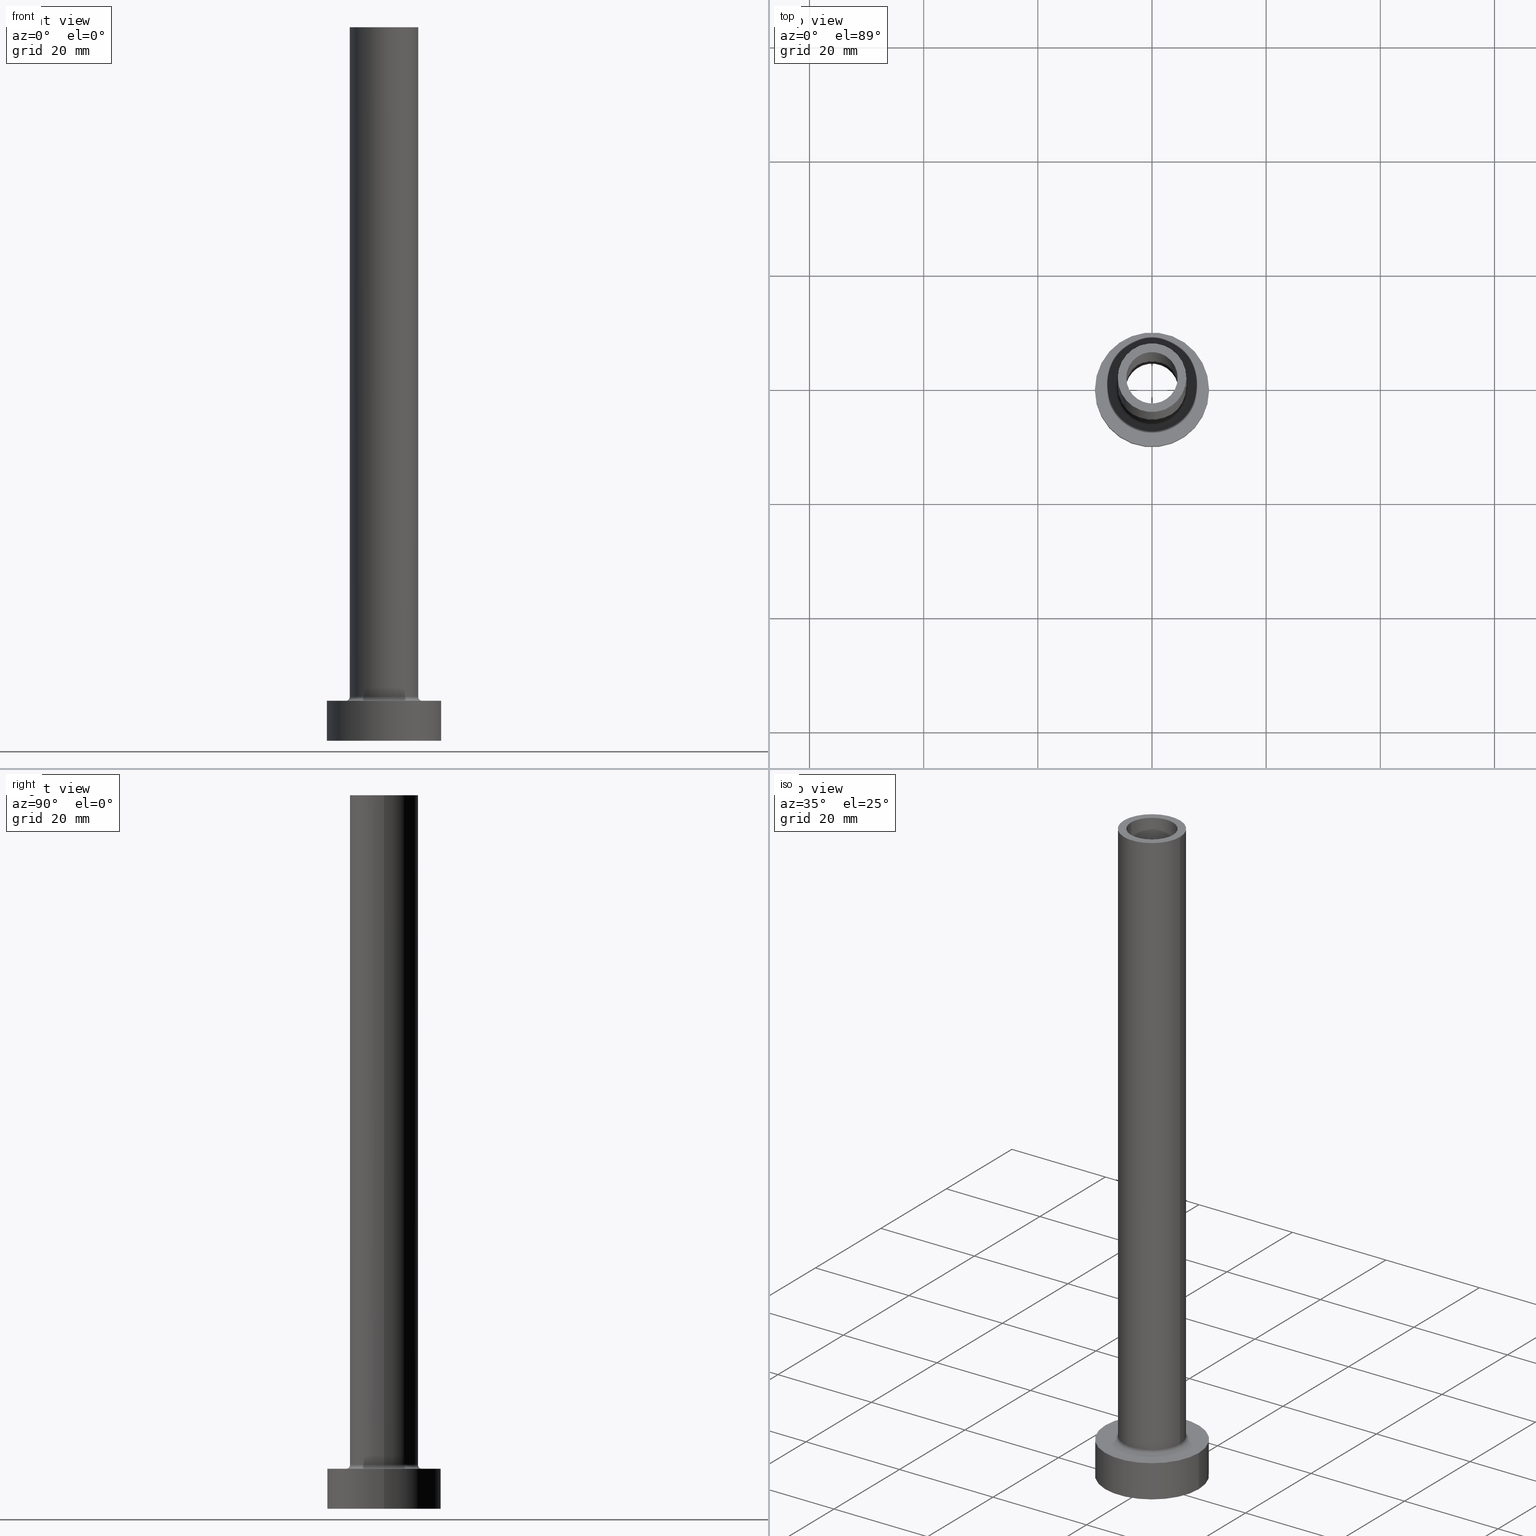
[diagram: canonical four-view strip — front | top / right | iso, engineering-drawing reading convention]
A machine part, canonical four-view strip (front | top / right | iso — engineering-drawing reading convention). The complete STEP part file that produces these views, byte-faithful:
ISO-10303-21;
HEADER;
FILE_DESCRIPTION (( 'STEP AP203' ),
    '1' );
FILE_NAME ('33ab.STEP',
    '2023-02-13T11:03:45',
    ( '' ),
    ( '' ),
    'SwSTEP 2.0',
    'SolidWorks 2019',
    '' );
FILE_SCHEMA (( 'CONFIG_CONTROL_DESIGN' ));
ENDSEC;

DATA;
#1 = CARTESIAN_POINT ( 'NONE',  ( 4.500000000000000000, 5.510910596163087583E-16, 125.0000000000000000 ) ) ;
#2 = PERSON_AND_ORGANIZATION_ROLE ( 'design_owner' ) ;
#3 = CARTESIAN_POINT ( 'NONE',  ( -6.700000000000001066, 8.205133554287267548E-16, 7.699999999999998401 ) ) ;
#4 = CIRCLE ( 'NONE', #98, 6.700000000000001066 ) ;
#5 =( GEOMETRIC_REPRESENTATION_CONTEXT ( 3 ) GLOBAL_UNCERTAINTY_ASSIGNED_CONTEXT ( ( #425 ) ) GLOBAL_UNIT_ASSIGNED_CONTEXT ( ( #255, #416, #392 ) ) REPRESENTATION_CONTEXT ( 'NONE', 'WORKASPACE' ) );
#6 = CARTESIAN_POINT ( 'NONE',  ( 0.000000000000000000, 0.000000000000000000, 125.0000000000000000 ) ) ;
#7 = ADVANCED_FACE ( 'NONE', ( #344 ), #171, .T. ) ;
#8 = DATE_AND_TIME ( #326, #81 ) ;
#9 = AXIS2_PLACEMENT_3D ( 'NONE', #311, #243, #339 ) ;
#10 = ORIENTED_EDGE ( 'NONE', *, *, #136, .T. ) ;
#11 = ORIENTED_EDGE ( 'NONE', *, *, #124, .T. ) ;
#12 = AXIS2_PLACEMENT_3D ( 'NONE', #412, #251, #384 ) ;
#13 = CC_DESIGN_PERSON_AND_ORGANIZATION_ASSIGNMENT ( #90, #56, ( #123 ) ) ;
#14 = APPROVAL_DATE_TIME ( #329, #270 ) ;
#15 = VERTEX_POINT ( 'NONE', #198 ) ;
#16 = ORIENTED_EDGE ( 'NONE', *, *, #349, .T. ) ;
#17 = AXIS2_PLACEMENT_3D ( 'NONE', #117, #153, #319 ) ;
#18 = ORIENTED_EDGE ( 'NONE', *, *, #204, .F. ) ;
#19 = LINE ( 'NONE', #161, #390 ) ;
#20 = CC_DESIGN_APPROVAL ( #22, ( #302 ) ) ;
#21 = VERTEX_POINT ( 'NONE', #378 ) ;
#22 = APPROVAL ( #223, 'NEUR�EN�' ) ;
#23 = CYLINDRICAL_SURFACE ( 'NONE', #64, 6.000000000000000888 ) ;
#24 = EDGE_LOOP ( 'NONE', ( #103, #408, #373, #87 ) ) ;
#25 = FACE_OUTER_BOUND ( 'NONE', #167, .T. ) ;
#26 = AXIS2_PLACEMENT_3D ( 'NONE', #43, #147, #73 ) ;
#27 = VERTEX_POINT ( 'NONE', #68 ) ;
#28 = FACE_OUTER_BOUND ( 'NONE', #122, .T. ) ;
#29 = EDGE_CURVE ( 'NONE', #268, #193, #342, .T. ) ;
#30 = VECTOR ( 'NONE', #108, 1000.000000000000000 ) ;
#31 = CIRCLE ( 'NONE', #457, 10.00000000000000000 ) ;
#32 = EDGE_LOOP ( 'NONE', ( #279, #126, #273, #369 ) ) ;
#33 = LINE ( 'NONE', #172, #211 ) ;
#34 = CARTESIAN_POINT ( 'NONE',  ( -6.700000000000001066, 8.205133554287267548E-16, 6.999999999999999112 ) ) ;
#35 = CARTESIAN_POINT ( 'NONE',  ( 0.000000000000000000, 0.000000000000000000, 7.699999999999998401 ) ) ;
#36 = DIRECTION ( 'NONE',  ( 0.000000000000000000, 0.000000000000000000, 1.000000000000000000 ) ) ;
#37 = CIRCLE ( 'NONE', #72, 4.650000000000000355 ) ;
#38 = DIRECTION ( 'NONE',  ( 1.000000000000000000, 0.000000000000000000, 0.000000000000000000 ) ) ;
#39 = CC_DESIGN_APPROVAL ( #270, ( #123 ) ) ;
#40 = DIRECTION ( 'NONE',  ( 0.000000000000000000, 0.000000000000000000, 1.000000000000000000 ) ) ;
#41 = LINE ( 'NONE', #1, #30 ) ;
#42 = DIRECTION ( 'NONE',  ( 1.000000000000000000, 0.000000000000000000, 0.000000000000000000 ) ) ;
#43 = CARTESIAN_POINT ( 'NONE',  ( 0.000000000000000000, 0.000000000000000000, 125.0000000000000000 ) ) ;
#44 = CALENDAR_DATE ( 2023, 13, 2 ) ;
#45 = ADVANCED_FACE ( 'NONE', ( #332 ), #139, .F. ) ;
#46 = DIRECTION ( 'NONE',  ( 0.000000000000000000, -1.000000000000000000, 0.000000000000000000 ) ) ;
#47 = ORIENTED_EDGE ( 'NONE', *, *, #434, .T. ) ;
#48 = AXIS2_PLACEMENT_3D ( 'NONE', #183, #391, #322 ) ;
#49 = AXIS2_PLACEMENT_3D ( 'NONE', #143, #348, #219 ) ;
#50 = APPLICATION_CONTEXT ( 'configuration controlled 3d designs of mechanical parts and assemblies' ) ;
#51 = CIRCLE ( 'NONE', #113, 0.7000000000000000666 ) ;
#52 = EDGE_CURVE ( 'NONE', #265, #400, #388, .T. ) ;
#53 = ORIENTED_EDGE ( 'NONE', *, *, #88, .F. ) ;
#54 = AXIS2_PLACEMENT_3D ( 'NONE', #241, #307, #449 ) ;
#55 = CIRCLE ( 'NONE', #446, 4.500000000000000000 ) ;
#56 = PERSON_AND_ORGANIZATION_ROLE ( 'creator' ) ;
#57 = EDGE_LOOP ( 'NONE', ( #297, #437, #134, #366 ) ) ;
#58 = ORIENTED_EDGE ( 'NONE', *, *, #173, .T. ) ;
#59 = DIRECTION ( 'NONE',  ( -0.000000000000000000, -0.000000000000000000, -1.000000000000000000 ) ) ;
#60 = VECTOR ( 'NONE', #258, 1000.000000000000000 ) ;
#61 = EDGE_CURVE ( 'NONE', #159, #186, #51, .T. ) ;
#62 = VERTEX_POINT ( 'NONE', #174 ) ;
#63 = CARTESIAN_POINT ( 'NONE',  ( -4.650000000000000355, 0.000000000000000000, 0.000000000000000000 ) ) ;
#64 = AXIS2_PLACEMENT_3D ( 'NONE', #102, #452, #202 ) ;
#65 = CIRCLE ( 'NONE', #163, 4.500000000000000000 ) ;
#66 = EDGE_LOOP ( 'NONE', ( #236, #330 ) ) ;
#67 = CARTESIAN_POINT ( 'NONE',  ( 0.000000000000000000, 0.000000000000000000, 7.000000000000000000 ) ) ;
#68 = CARTESIAN_POINT ( 'NONE',  ( 4.500000000000000000, 5.510910596163087583E-16, 125.0000000000000000 ) ) ;
#69 = CYLINDRICAL_SURFACE ( 'NONE', #116, 4.500000000000000000 ) ;
#70 = DIRECTION ( 'NONE',  ( -1.000000000000000000, 0.000000000000000000, 0.000000000000000000 ) ) ;
#71 = DIRECTION ( 'NONE',  ( 0.000000000000000000, 0.000000000000000000, 1.000000000000000000 ) ) ;
#72 = AXIS2_PLACEMENT_3D ( 'NONE', #456, #460, #426 ) ;
#73 = DIRECTION ( 'NONE',  ( 1.000000000000000000, 0.000000000000000000, 0.000000000000000000 ) ) ;
#74 = DIRECTION ( 'NONE',  ( 1.000000000000000000, 0.000000000000000000, 0.000000000000000000 ) ) ;
#75 = DIRECTION ( 'NONE',  ( 1.000000000000000000, 0.000000000000000000, 0.000000000000000000 ) ) ;
#76 = APPROVAL_DATE_TIME ( #385, #22 ) ;
#77 = EDGE_CURVE ( 'NONE', #15, #159, #111, .T. ) ;
#78 = DIRECTION ( 'NONE',  ( -1.000000000000000000, 1.224646799147353454E-16, 0.000000000000000000 ) ) ;
#79 = FACE_OUTER_BOUND ( 'NONE', #398, .T. ) ;
#80 = PLANE ( 'NONE',  #377 ) ;
#81 = LOCAL_TIME ( 12, 3, 44.00000000000000000, #226 ) ;
#82 = CYLINDRICAL_SURFACE ( 'NONE', #149, 4.650000000000000355 ) ;
#83 = CARTESIAN_POINT ( 'NONE',  ( 0.000000000000000000, 0.000000000000000000, 7.000000000000000000 ) ) ;
#84 = ADVANCED_FACE ( 'NONE', ( #145 ), #82, .F. ) ;
#85 = DIRECTION ( 'NONE',  ( 0.000000000000000000, 0.000000000000000000, -1.000000000000000000 ) ) ;
#86 = AXIS2_PLACEMENT_3D ( 'NONE', #207, #333, #406 ) ;
#87 = ORIENTED_EDGE ( 'NONE', *, *, #158, .F. ) ;
#88 = EDGE_CURVE ( 'NONE', #197, #96, #114, .T. ) ;
#89 = ORIENTED_EDGE ( 'NONE', *, *, #195, .F. ) ;
#90 = PERSON_AND_ORGANIZATION ( #424, #107 ) ;
#91 = VERTEX_POINT ( 'NONE', #254 ) ;
#92 = CYLINDRICAL_SURFACE ( 'NONE', #432, 10.00000000000000000 ) ;
#93 = EDGE_CURVE ( 'NONE', #268, #15, #313, .T. ) ;
#94 = ORIENTED_EDGE ( 'NONE', *, *, #173, .F. ) ;
#95 = CARTESIAN_POINT ( 'NONE',  ( 0.000000000000000000, 0.000000000000000000, 7.699999999999998401 ) ) ;
#96 = VERTEX_POINT ( 'NONE', #422 ) ;
#97 = CARTESIAN_POINT ( 'NONE',  ( 6.000000000000000888, 7.347880794884120722E-16, 125.0000000000000000 ) ) ;
#98 = AXIS2_PLACEMENT_3D ( 'NONE', #359, #260, #185 ) ;
#99 = CC_DESIGN_APPROVAL ( #397, ( #346 ) ) ;
#100 = CC_DESIGN_DATE_AND_TIME_ASSIGNMENT ( #249, #381, ( #302 ) ) ;
#101 = ORIENTED_EDGE ( 'NONE', *, *, #77, .T. ) ;
#102 = CARTESIAN_POINT ( 'NONE',  ( 0.000000000000000000, 0.000000000000000000, 125.0000000000000000 ) ) ;
#103 = ORIENTED_EDGE ( 'NONE', *, *, #129, .F. ) ;
#104 = DIRECTION ( 'NONE',  ( -0.000000000000000000, -0.000000000000000000, -1.000000000000000000 ) ) ;
#105 = CARTESIAN_POINT ( 'NONE',  ( 0.000000000000000000, 0.000000000000000000, 0.000000000000000000 ) ) ;
#106 = CALENDAR_DATE ( 2023, 13, 2 ) ;
#107 = ORGANIZATION ( 'NEUR�EN�', 'NEUR�EN�', '' ) ;
#108 = DIRECTION ( 'NONE',  ( 0.000000000000000000, 0.000000000000000000, -1.000000000000000000 ) ) ;
#109 = MECHANICAL_CONTEXT ( 'NONE', #429, 'mechanical' ) ;
#110 = ADVANCED_FACE ( 'NONE', ( #453, #150 ), #80, .F. ) ;
#111 = LINE ( 'NONE', #419, #299 ) ;
#112 = MANIFOLD_SOLID_BREP ( 'Odebrat vysunut�m4', #420 ) ;
#113 = AXIS2_PLACEMENT_3D ( 'NONE', #3, #180, #78 ) ;
#114 = LINE ( 'NONE', #357, #60 ) ;
#115 = DESIGN_CONTEXT ( 'detailed design', #50, 'design' ) ;
#116 = AXIS2_PLACEMENT_3D ( 'NONE', #205, #439, #309 ) ;
#117 = CARTESIAN_POINT ( 'NONE',  ( 0.000000000000000000, 0.000000000000000000, 7.699999999999998401 ) ) ;
#118 = ADVANCED_FACE ( 'NONE', ( #289 ), #182, .F. ) ;
#119 = CARTESIAN_POINT ( 'NONE',  ( -4.500000000000000000, 0.000000000000000000, 125.0000000000000000 ) ) ;
#120 = PERSON_AND_ORGANIZATION_ROLE ( 'classification_officer' ) ;
#121 = APPROVAL_STATUS ( 'not_yet_approved' ) ;
#122 = EDGE_LOOP ( 'NONE', ( #328, #169, #101, #365 ) ) ;
#123 = PRODUCT_DEFINITION_FORMATION_WITH_SPECIFIED_SOURCE ( 'LIBOVOLN�', '', #262, .NOT_KNOWN. ) ;
#124 = EDGE_CURVE ( 'NONE', #193, #159, #224, .T. ) ;
#125 = PERSON_AND_ORGANIZATION ( #424, #107 ) ;
#126 = ORIENTED_EDGE ( 'NONE', *, *, #356, .T. ) ;
#127 = ORIENTED_EDGE ( 'NONE', *, *, #52, .T. ) ;
#128 = ORIENTED_EDGE ( 'NONE', *, *, #247, .F. ) ;
#129 = EDGE_CURVE ( 'NONE', #27, #62, #41, .T. ) ;
#130 = LOCAL_TIME ( 12, 3, 44.00000000000000000, #394 ) ;
#131 = PERSON_AND_ORGANIZATION ( #424, #107 ) ;
#132 = ORIENTED_EDGE ( 'NONE', *, *, #93, .T. ) ;
#133 = FACE_OUTER_BOUND ( 'NONE', #435, .T. ) ;
#134 = ORIENTED_EDGE ( 'NONE', *, *, #253, .T. ) ;
#135 = CARTESIAN_POINT ( 'NONE',  ( -10.00000000000000000, 0.000000000000000000, 0.000000000000000000 ) ) ;
#136 = EDGE_CURVE ( 'NONE', #21, #265, #152, .T. ) ;
#137 = EDGE_LOOP ( 'NONE', ( #363, #235, #11, #336 ) ) ;
#138 = DIRECTION ( 'NONE',  ( 0.000000000000000000, 0.000000000000000000, 1.000000000000000000 ) ) ;
#139 = CYLINDRICAL_SURFACE ( 'NONE', #320, 4.650000000000000355 ) ;
#140 = DIRECTION ( 'NONE',  ( -1.000000000000000000, 0.000000000000000000, 0.000000000000000000 ) ) ;
#141 = DIRECTION ( 'NONE',  ( -0.000000000000000000, -0.000000000000000000, -1.000000000000000000 ) ) ;
#142 = PERSON_AND_ORGANIZATION ( #424, #107 ) ;
#143 = CARTESIAN_POINT ( 'NONE',  ( 0.000000000000000000, 0.000000000000000000, 125.0000000000000000 ) ) ;
#144 = EDGE_CURVE ( 'NONE', #233, #400, #264, .T. ) ;
#145 = FACE_OUTER_BOUND ( 'NONE', #300, .T. ) ;
#146 = DIRECTION ( 'NONE',  ( 0.000000000000000000, 0.000000000000000000, 1.000000000000000000 ) ) ;
#147 = DIRECTION ( 'NONE',  ( 0.000000000000000000, 0.000000000000000000, 1.000000000000000000 ) ) ;
#148 = CARTESIAN_POINT ( 'NONE',  ( -4.650000000000000355, 0.000000000000000000, 93.15218613006979353 ) ) ;
#149 = AXIS2_PLACEMENT_3D ( 'NONE', #222, #287, #312 ) ;
#150 = FACE_OUTER_BOUND ( 'NONE', #245, .T. ) ;
#151 = APPLICATION_PROTOCOL_DEFINITION ( 'international standard', 'config_control_design', 1994, #50 ) ;
#152 = CIRCLE ( 'NONE', #48, 4.650000000000000355 ) ;
#153 = DIRECTION ( 'NONE',  ( 0.000000000000000000, 0.000000000000000000, 1.000000000000000000 ) ) ;
#154 = PERSON_AND_ORGANIZATION_ROLE ( 'design_supplier' ) ;
#155 = ORIENTED_EDGE ( 'NONE', *, *, #418, .F. ) ;
#156 = EDGE_CURVE ( 'NONE', #191, #375, #455, .T. ) ;
#157 = ORIENTED_EDGE ( 'NONE', *, *, #195, .T. ) ;
#158 = EDGE_CURVE ( 'NONE', #62, #96, #414, .T. ) ;
#159 = VERTEX_POINT ( 'NONE', #213 ) ;
#160 = DIRECTION ( 'NONE',  ( 0.000000000000000000, 0.000000000000000000, -1.000000000000000000 ) ) ;
#161 = CARTESIAN_POINT ( 'NONE',  ( -10.00000000000000000, 0.000000000000000000, 7.000000000000000000 ) ) ;
#162 = CIRCLE ( 'NONE', #192, 6.000000000000000888 ) ;
#163 = AXIS2_PLACEMENT_3D ( 'NONE', #379, #71, #209 ) ;
#164 = ORIENTED_EDGE ( 'NONE', *, *, #136, .F. ) ;
#165 = CARTESIAN_POINT ( 'NONE',  ( 0.000000000000000000, 0.000000000000000000, 7.000000000000000000 ) ) ;
#166 = EDGE_CURVE ( 'NONE', #375, #191, #274, .T. ) ;
#167 = EDGE_LOOP ( 'NONE', ( #263, #405 ) ) ;
#168 = PLANE ( 'NONE',  #54 ) ;
#169 = ORIENTED_EDGE ( 'NONE', *, *, #434, .F. ) ;
#170 = DIRECTION ( 'NONE',  ( 1.000000000000000000, 0.000000000000000000, 0.000000000000000000 ) ) ;
#171 = CYLINDRICAL_SURFACE ( 'NONE', #9, 6.000000000000000888 ) ;
#172 = CARTESIAN_POINT ( 'NONE',  ( 10.00000000000000000, 1.224646799147353256E-15, 7.000000000000000000 ) ) ;
#173 = EDGE_CURVE ( 'NONE', #91, #186, #353, .T. ) ;
#174 = CARTESIAN_POINT ( 'NONE',  ( 4.500000000000000000, 5.510910596163087583E-16, 80.00000000000000000 ) ) ;
#175 = COORDINATED_UNIVERSAL_TIME_OFFSET ( 1, 0, .AHEAD. ) ;
#176 = VECTOR ( 'NONE', #141, 1000.000000000000000 ) ;
#177 = CARTESIAN_POINT ( 'NONE',  ( 10.00000000000000000, 1.224646799147353256E-15, 0.000000000000000000 ) ) ;
#178 = AXIS2_PLACEMENT_3D ( 'NONE', #165, #138, #411 ) ;
#179 = CARTESIAN_POINT ( 'NONE',  ( 0.000000000000000000, 0.000000000000000000, 7.000000000000000000 ) ) ;
#180 = DIRECTION ( 'NONE',  ( 1.224646799147353207E-16, 1.000000000000000000, -0.000000000000000000 ) ) ;
#181 = APPLICATION_PROTOCOL_DEFINITION ( 'international standard', 'config_control_design', 1994, #429 ) ;
#182 = TOROIDAL_SURFACE ( 'NONE', #436, 6.700000000000001066, 0.6999999999999999556 ) ;
#183 = CARTESIAN_POINT ( 'NONE',  ( 0.000000000000000000, 0.000000000000000000, 80.00000000000000000 ) ) ;
#184 = CARTESIAN_POINT ( 'NONE',  ( 0.000000000000000000, 0.000000000000000000, 125.0000000000000000 ) ) ;
#185 = DIRECTION ( 'NONE',  ( 1.000000000000000000, 0.000000000000000000, 0.000000000000000000 ) ) ;
#186 = VERTEX_POINT ( 'NONE', #34 ) ;
#187 = CC_DESIGN_DATE_AND_TIME_ASSIGNMENT ( #8, #188, ( #346 ) ) ;
#188 = DATE_TIME_ROLE ( 'classification_date' ) ;
#189 = ORIENTED_EDGE ( 'NONE', *, *, #321, .F. ) ;
#190 = VECTOR ( 'NONE', #283, 1000.000000000000000 ) ;
#191 = VERTEX_POINT ( 'NONE', #177 ) ;
#192 = AXIS2_PLACEMENT_3D ( 'NONE', #95, #337, #170 ) ;
#193 = VERTEX_POINT ( 'NONE', #315 ) ;
#194 = PRODUCT_DEFINITION_SHAPE ( 'NONE', 'NONE',  #302 ) ;
#195 = EDGE_CURVE ( 'NONE', #265, #21, #37, .T. ) ;
#196 = PERSON_AND_ORGANIZATION ( #424, #107 ) ;
#197 = VERTEX_POINT ( 'NONE', #119 ) ;
#198 = CARTESIAN_POINT ( 'NONE',  ( -6.000000000000000888, 0.000000000000000000, 125.0000000000000000 ) ) ;
#199 = FACE_OUTER_BOUND ( 'NONE', #304, .T. ) ;
#200 = DATE_AND_TIME ( #267, #296 ) ;
#201 = ORIENTED_EDGE ( 'NONE', *, *, #247, .T. ) ;
#202 = DIRECTION ( 'NONE',  ( -1.000000000000000000, 0.000000000000000000, 0.000000000000000000 ) ) ;
#203 = ORIENTED_EDGE ( 'NONE', *, *, #144, .F. ) ;
#204 = EDGE_CURVE ( 'NONE', #186, #91, #4, .T. ) ;
#205 = CARTESIAN_POINT ( 'NONE',  ( 0.000000000000000000, 0.000000000000000000, 125.0000000000000000 ) ) ;
#206 = EDGE_LOOP ( 'NONE', ( #438, #189 ) ) ;
#207 = CARTESIAN_POINT ( 'NONE',  ( 0.000000000000000000, 0.000000000000000000, 7.699999999999998401 ) ) ;
#208 = VERTEX_POINT ( 'NONE', #291 ) ;
#209 = DIRECTION ( 'NONE',  ( 1.000000000000000000, 0.000000000000000000, 0.000000000000000000 ) ) ;
#210 = AXIS2_PLACEMENT_3D ( 'NONE', #179, #347, #350 ) ;
#211 = VECTOR ( 'NONE', #59, 1000.000000000000000 ) ;
#212 = EDGE_CURVE ( 'NONE', #193, #91, #323, .T. ) ;
#213 = CARTESIAN_POINT ( 'NONE',  ( -6.000000000000000888, 0.000000000000000000, 7.699999999999998401 ) ) ;
#214 = PERSON_AND_ORGANIZATION_ROLE ( 'creator' ) ;
#215 = CARTESIAN_POINT ( 'NONE',  ( 0.000000000000000000, 0.000000000000000000, 0.000000000000000000 ) ) ;
#216 = LINE ( 'NONE', #148, #242 ) ;
#217 = CARTESIAN_POINT ( 'NONE',  ( 4.650000000000000355, 5.694607616035192869E-16, 93.15218613006979353 ) ) ;
#218 = ADVANCED_FACE ( 'NONE', ( #225 ), #325, .F. ) ;
#219 = DIRECTION ( 'NONE',  ( 1.000000000000000000, 0.000000000000000000, -0.000000000000000000 ) ) ;
#220 = AXIS2_PLACEMENT_3D ( 'NONE', #374, #343, #404 ) ;
#221 = DIRECTION ( 'NONE',  ( -0.000000000000000000, -0.000000000000000000, -1.000000000000000000 ) ) ;
#222 = CARTESIAN_POINT ( 'NONE',  ( 0.000000000000000000, 0.000000000000000000, 93.15218613006979353 ) ) ;
#223 = APPROVAL_STATUS ( 'not_yet_approved' ) ;
#224 = CIRCLE ( 'NONE', #17, 6.000000000000000888 ) ;
#225 = FACE_OUTER_BOUND ( 'NONE', #24, .T. ) ;
#226 = COORDINATED_UNIVERSAL_TIME_OFFSET ( 1, 0, .AHEAD. ) ;
#227 = AXIS2_PLACEMENT_3D ( 'NONE', #393, #46, #85 ) ;
#228 = EDGE_CURVE ( 'NONE', #159, #193, #162, .T. ) ;
#229 = CIRCLE ( 'NONE', #324, 6.000000000000000888 ) ;
#230 = CC_DESIGN_SECURITY_CLASSIFICATION ( #346, ( #123 ) ) ;
#231 = ORIENTED_EDGE ( 'NONE', *, *, #61, .F. ) ;
#232 = ORIENTED_EDGE ( 'NONE', *, *, #144, .T. ) ;
#233 = VERTEX_POINT ( 'NONE', #63 ) ;
#234 = CIRCLE ( 'NONE', #396, 4.500000000000000000 ) ;
#235 = ORIENTED_EDGE ( 'NONE', *, *, #29, .T. ) ;
#236 = ORIENTED_EDGE ( 'NONE', *, *, #413, .T. ) ;
#237 = FACE_BOUND ( 'NONE', #298, .T. ) ;
#238 = ADVANCED_FACE ( 'NONE', ( #199 ), #407, .F. ) ;
#239 = EDGE_LOOP ( 'NONE', ( #16, #395, #306, #53 ) ) ;
#240 = AXIS2_PLACEMENT_3D ( 'NONE', #105, #248, #417 ) ;
#241 = CARTESIAN_POINT ( 'NONE',  ( 0.000000000000000000, 0.000000000000000000, 0.000000000000000000 ) ) ;
#242 = VECTOR ( 'NONE', #288, 1000.000000000000000 ) ;
#243 = DIRECTION ( 'NONE',  ( -0.000000000000000000, -0.000000000000000000, -1.000000000000000000 ) ) ;
#244 = CARTESIAN_POINT ( 'NONE',  ( 0.000000000000000000, 0.000000000000000000, 7.000000000000000000 ) ) ;
#245 = EDGE_LOOP ( 'NONE', ( #164, #89 ) ) ;
#246 = DIRECTION ( 'NONE',  ( -1.000000000000000000, 0.000000000000000000, 0.000000000000000000 ) ) ;
#247 = EDGE_CURVE ( 'NONE', #400, #233, #334, .T. ) ;
#248 = DIRECTION ( 'NONE',  ( 0.000000000000000000, 0.000000000000000000, 1.000000000000000000 ) ) ;
#249 = DATE_AND_TIME ( #106, #310 ) ;
#250 = AXIS2_PLACEMENT_3D ( 'NONE', #67, #376, #140 ) ;
#251 = DIRECTION ( 'NONE',  ( -0.000000000000000000, -0.000000000000000000, -1.000000000000000000 ) ) ;
#252 = CARTESIAN_POINT ( 'NONE',  ( 0.000000000000000000, 0.000000000000000000, 0.000000000000000000 ) ) ;
#253 = EDGE_CURVE ( 'NONE', #327, #375, #19, .T. ) ;
#254 = CARTESIAN_POINT ( 'NONE',  ( 6.700000000000001066, 0.000000000000000000, 6.999999999999999112 ) ) ;
#255 =( LENGTH_UNIT ( ) NAMED_UNIT ( * ) SI_UNIT ( .MILLI., .METRE. ) );
#256 = DIRECTION ( 'NONE',  ( 1.000000000000000000, 0.000000000000000000, -0.000000000000000000 ) ) ;
#257 = CIRCLE ( 'NONE', #284, 10.00000000000000000 ) ;
#258 = DIRECTION ( 'NONE',  ( 0.000000000000000000, 0.000000000000000000, -1.000000000000000000 ) ) ;
#259 = PERSON_AND_ORGANIZATION ( #424, #107 ) ;
#260 = DIRECTION ( 'NONE',  ( -0.000000000000000000, -0.000000000000000000, -1.000000000000000000 ) ) ;
#261 = ADVANCED_FACE ( 'NONE', ( #28 ), #23, .T. ) ;
#262 = PRODUCT ( '33ab', '33ab', '', ( #109 ) ) ;
#263 = ORIENTED_EDGE ( 'NONE', *, *, #459, .T. ) ;
#264 = CIRCLE ( 'NONE', #12, 4.650000000000000355 ) ;
#265 = VERTEX_POINT ( 'NONE', #345 ) ;
#266 = FACE_OUTER_BOUND ( 'NONE', #32, .T. ) ;
#267 = CALENDAR_DATE ( 2023, 13, 2 ) ;
#268 = VERTEX_POINT ( 'NONE', #97 ) ;
#269 = CYLINDRICAL_SURFACE ( 'NONE', #250, 10.00000000000000000 ) ;
#270 = APPROVAL ( #121, 'NEUR�EN�' ) ;
#271 = ORIENTED_EDGE ( 'NONE', *, *, #212, .T. ) ;
#272 = DIRECTION ( 'NONE',  ( 0.000000000000000000, 0.000000000000000000, -1.000000000000000000 ) ) ;
#273 = ORIENTED_EDGE ( 'NONE', *, *, #156, .T. ) ;
#274 = CIRCLE ( 'NONE', #401, 10.00000000000000000 ) ;
#275 = DIRECTION ( 'NONE',  ( -0.000000000000000000, -0.000000000000000000, -1.000000000000000000 ) ) ;
#276 = LOCAL_TIME ( 12, 3, 44.00000000000000000, #175 ) ;
#277 = ADVANCED_FACE ( 'NONE', ( #303 ), #69, .F. ) ;
#278 = APPROVAL_DATE_TIME ( #200, #397 ) ;
#279 = ORIENTED_EDGE ( 'NONE', *, *, #442, .F. ) ;
#280 = FACE_OUTER_BOUND ( 'NONE', #57, .T. ) ;
#281 = ORIENTED_EDGE ( 'NONE', *, *, #52, .F. ) ;
#282 = COORDINATED_UNIVERSAL_TIME_OFFSET ( 1, 0, .AHEAD. ) ;
#283 = DIRECTION ( 'NONE',  ( 0.000000000000000000, 0.000000000000000000, -1.000000000000000000 ) ) ;
#284 = AXIS2_PLACEMENT_3D ( 'NONE', #421, #387, #290 ) ;
#285 = DIRECTION ( 'NONE',  ( 1.000000000000000000, 0.000000000000000000, 0.000000000000000000 ) ) ;
#286 = ADVANCED_FACE ( 'NONE', ( #402, #133 ), #168, .F. ) ;
#287 = DIRECTION ( 'NONE',  ( 0.000000000000000000, 0.000000000000000000, -1.000000000000000000 ) ) ;
#288 = DIRECTION ( 'NONE',  ( 0.000000000000000000, 0.000000000000000000, -1.000000000000000000 ) ) ;
#289 = FACE_OUTER_BOUND ( 'NONE', #433, .T. ) ;
#290 = DIRECTION ( 'NONE',  ( 1.000000000000000000, 0.000000000000000000, 0.000000000000000000 ) ) ;
#291 = CARTESIAN_POINT ( 'NONE',  ( 10.00000000000000000, 1.224646799147353256E-15, 7.000000000000000000 ) ) ;
#292 = ADVANCED_FACE ( 'NONE', ( #237, #25 ), #444, .T. ) ;
#293 = SECURITY_CLASSIFICATION_LEVEL ( 'unclassified' ) ;
#294 = ORIENTED_EDGE ( 'NONE', *, *, #156, .F. ) ;
#295 = ADVANCED_FACE ( 'NONE', ( #266 ), #269, .T. ) ;
#296 = LOCAL_TIME ( 12, 3, 44.00000000000000000, #447 ) ;
#297 = ORIENTED_EDGE ( 'NONE', *, *, #356, .F. ) ;
#298 = EDGE_LOOP ( 'NONE', ( #58, #403 ) ) ;
#299 = VECTOR ( 'NONE', #221, 1000.000000000000000 ) ;
#300 = EDGE_LOOP ( 'NONE', ( #281, #157, #308, #232 ) ) ;
#301 = ORIENTED_EDGE ( 'NONE', *, *, #61, .T. ) ;
#302 = PRODUCT_DEFINITION ( 'NEZN�M�', '', #123, #115 ) ;
#303 = FACE_OUTER_BOUND ( 'NONE', #239, .T. ) ;
#304 = EDGE_LOOP ( 'NONE', ( #231, #440, #271, #18 ) ) ;
#305 = CARTESIAN_POINT ( 'NONE',  ( 0.000000000000000000, 0.000000000000000000, 125.0000000000000000 ) ) ;
#306 = ORIENTED_EDGE ( 'NONE', *, *, #413, .F. ) ;
#307 = DIRECTION ( 'NONE',  ( 0.000000000000000000, 0.000000000000000000, 1.000000000000000000 ) ) ;
#308 = ORIENTED_EDGE ( 'NONE', *, *, #418, .T. ) ;
#309 = DIRECTION ( 'NONE',  ( -1.000000000000000000, 0.000000000000000000, 0.000000000000000000 ) ) ;
#310 = LOCAL_TIME ( 12, 3, 44.00000000000000000, #282 ) ;
#311 = CARTESIAN_POINT ( 'NONE',  ( 0.000000000000000000, 0.000000000000000000, 125.0000000000000000 ) ) ;
#312 = DIRECTION ( 'NONE',  ( -1.000000000000000000, 0.000000000000000000, 0.000000000000000000 ) ) ;
#313 = CIRCLE ( 'NONE', #26, 6.000000000000000888 ) ;
#314 = FACE_BOUND ( 'NONE', #206, .T. ) ;
#315 = CARTESIAN_POINT ( 'NONE',  ( 6.000000000000000888, 7.347880794884120722E-16, 7.699999999999998401 ) ) ;
#316 = DIRECTION ( 'NONE',  ( 1.000000000000000000, 0.000000000000000000, 0.000000000000000000 ) ) ;
#317 = APPROVAL_PERSON_ORGANIZATION ( #259, #22, #358 ) ;
#318 = DIRECTION ( 'NONE',  ( 0.000000000000000000, 0.000000000000000000, 1.000000000000000000 ) ) ;
#319 = DIRECTION ( 'NONE',  ( 1.000000000000000000, 0.000000000000000000, 0.000000000000000000 ) ) ;
#320 = AXIS2_PLACEMENT_3D ( 'NONE', #410, #160, #70 ) ;
#321 = EDGE_CURVE ( 'NONE', #27, #197, #55, .T. ) ;
#322 = DIRECTION ( 'NONE',  ( 1.000000000000000000, 0.000000000000000000, 0.000000000000000000 ) ) ;
#323 = CIRCLE ( 'NONE', #227, 0.7000000000000000666 ) ;
#324 = AXIS2_PLACEMENT_3D ( 'NONE', #184, #146, #316 ) ;
#325 = CYLINDRICAL_SURFACE ( 'NONE', #361, 4.500000000000000000 ) ;
#326 = CALENDAR_DATE ( 2023, 13, 2 ) ;
#327 = VERTEX_POINT ( 'NONE', #409 ) ;
#328 = ORIENTED_EDGE ( 'NONE', *, *, #29, .F. ) ;
#329 = DATE_AND_TIME ( #431, #130 ) ;
#330 = ORIENTED_EDGE ( 'NONE', *, *, #158, .T. ) ;
#331 = ADVANCED_FACE ( 'NONE', ( #280 ), #92, .T. ) ;
#332 = FACE_OUTER_BOUND ( 'NONE', #428, .T. ) ;
#333 = DIRECTION ( 'NONE',  ( 0.000000000000000000, 0.000000000000000000, 1.000000000000000000 ) ) ;
#334 = CIRCLE ( 'NONE', #220, 4.650000000000000355 ) ;
#335 = ADVANCED_BREP_SHAPE_REPRESENTATION ( '33ab', ( #112, #371 ), #5 ) ;
#336 = ORIENTED_EDGE ( 'NONE', *, *, #77, .F. ) ;
#337 = DIRECTION ( 'NONE',  ( 0.000000000000000000, 0.000000000000000000, 1.000000000000000000 ) ) ;
#338 = APPROVAL_ROLE ( '' ) ;
#339 = DIRECTION ( 'NONE',  ( -1.000000000000000000, 0.000000000000000000, 0.000000000000000000 ) ) ;
#340 = PRODUCT_RELATED_PRODUCT_CATEGORY ( 'detail', '', ( #262 ) ) ;
#341 = SHAPE_DEFINITION_REPRESENTATION ( #194, #335 ) ;
#342 = LINE ( 'NONE', #451, #176 ) ;
#343 = DIRECTION ( 'NONE',  ( -0.000000000000000000, -0.000000000000000000, -1.000000000000000000 ) ) ;
#344 = FACE_OUTER_BOUND ( 'NONE', #137, .T. ) ;
#345 = CARTESIAN_POINT ( 'NONE',  ( 4.650000000000000355, 5.694607616035192869E-16, 80.00000000000000000 ) ) ;
#346 = SECURITY_CLASSIFICATION ( '', '', #293 ) ;
#347 = DIRECTION ( 'NONE',  ( -0.000000000000000000, -0.000000000000000000, -1.000000000000000000 ) ) ;
#348 = DIRECTION ( 'NONE',  ( 0.000000000000000000, 0.000000000000000000, 1.000000000000000000 ) ) ;
#349 = EDGE_CURVE ( 'NONE', #197, #27, #65, .T. ) ;
#350 = DIRECTION ( 'NONE',  ( 1.000000000000000000, 0.000000000000000000, 0.000000000000000000 ) ) ;
#351 = PERSON_AND_ORGANIZATION ( #424, #107 ) ;
#352 = CARTESIAN_POINT ( 'NONE',  ( 0.000000000000000000, 0.000000000000000000, 80.00000000000000000 ) ) ;
#353 = CIRCLE ( 'NONE', #210, 6.700000000000001066 ) ;
#354 = CARTESIAN_POINT ( 'NONE',  ( 0.000000000000000000, 0.000000000000000000, 80.00000000000000000 ) ) ;
#355 = DIRECTION ( 'NONE',  ( 0.000000000000000000, 0.000000000000000000, 1.000000000000000000 ) ) ;
#356 = EDGE_CURVE ( 'NONE', #208, #191, #33, .T. ) ;
#357 = CARTESIAN_POINT ( 'NONE',  ( -4.500000000000000000, 0.000000000000000000, 125.0000000000000000 ) ) ;
#358 = APPROVAL_ROLE ( '' ) ;
#359 = CARTESIAN_POINT ( 'NONE',  ( 0.000000000000000000, 0.000000000000000000, 7.000000000000000000 ) ) ;
#360 = ORIENTED_EDGE ( 'NONE', *, *, #228, .F. ) ;
#361 = AXIS2_PLACEMENT_3D ( 'NONE', #6, #272, #367 ) ;
#362 = APPROVAL_ROLE ( '' ) ;
#363 = ORIENTED_EDGE ( 'NONE', *, *, #93, .F. ) ;
#364 = APPROVAL_PERSON_ORGANIZATION ( #125, #270, #362 ) ;
#365 = ORIENTED_EDGE ( 'NONE', *, *, #228, .T. ) ;
#366 = ORIENTED_EDGE ( 'NONE', *, *, #166, .T. ) ;
#367 = DIRECTION ( 'NONE',  ( -1.000000000000000000, 0.000000000000000000, 0.000000000000000000 ) ) ;
#368 = APPROVAL_STATUS ( 'not_yet_approved' ) ;
#369 = ORIENTED_EDGE ( 'NONE', *, *, #253, .F. ) ;
#370 = DIRECTION ( 'NONE',  ( 1.000000000000000000, 0.000000000000000000, 0.000000000000000000 ) ) ;
#371 = AXIS2_PLACEMENT_3D ( 'NONE', #252, #355, #42 ) ;
#372 = CC_DESIGN_PERSON_AND_ORGANIZATION_ASSIGNMENT ( #427, #120, ( #346 ) ) ;
#373 = ORIENTED_EDGE ( 'NONE', *, *, #88, .T. ) ;
#374 = CARTESIAN_POINT ( 'NONE',  ( 0.000000000000000000, 0.000000000000000000, 0.000000000000000000 ) ) ;
#375 = VERTEX_POINT ( 'NONE', #135 ) ;
#376 = DIRECTION ( 'NONE',  ( -0.000000000000000000, -0.000000000000000000, -1.000000000000000000 ) ) ;
#377 = AXIS2_PLACEMENT_3D ( 'NONE', #354, #386, #256 ) ;
#378 = CARTESIAN_POINT ( 'NONE',  ( -4.650000000000000355, 0.000000000000000000, 80.00000000000000000 ) ) ;
#379 = CARTESIAN_POINT ( 'NONE',  ( 0.000000000000000000, 0.000000000000000000, 125.0000000000000000 ) ) ;
#380 = DIRECTION ( 'NONE',  ( 0.000000000000000000, 0.000000000000000000, 1.000000000000000000 ) ) ;
#381 = DATE_TIME_ROLE ( 'creation_date' ) ;
#382 = APPROVAL_PERSON_ORGANIZATION ( #131, #397, #338 ) ;
#383 = CC_DESIGN_PERSON_AND_ORGANIZATION_ASSIGNMENT ( #351, #2, ( #262 ) ) ;
#384 = DIRECTION ( 'NONE',  ( 1.000000000000000000, 0.000000000000000000, 0.000000000000000000 ) ) ;
#385 = DATE_AND_TIME ( #44, #276 ) ;
#386 = DIRECTION ( 'NONE',  ( 0.000000000000000000, 0.000000000000000000, 1.000000000000000000 ) ) ;
#387 = DIRECTION ( 'NONE',  ( 0.000000000000000000, 0.000000000000000000, 1.000000000000000000 ) ) ;
#388 = LINE ( 'NONE', #217, #190 ) ;
#389 = CC_DESIGN_PERSON_AND_ORGANIZATION_ASSIGNMENT ( #196, #154, ( #123 ) ) ;
#390 = VECTOR ( 'NONE', #275, 1000.000000000000000 ) ;
#391 = DIRECTION ( 'NONE',  ( 0.000000000000000000, 0.000000000000000000, 1.000000000000000000 ) ) ;
#392 =( NAMED_UNIT ( * ) SI_UNIT ( $, .STERADIAN. ) SOLID_ANGLE_UNIT ( ) );
#393 = CARTESIAN_POINT ( 'NONE',  ( 6.700000000000001066, 0.000000000000000000, 7.699999999999998401 ) ) ;
#394 = COORDINATED_UNIVERSAL_TIME_OFFSET ( 1, 0, .AHEAD. ) ;
#395 = ORIENTED_EDGE ( 'NONE', *, *, #129, .T. ) ;
#396 = AXIS2_PLACEMENT_3D ( 'NONE', #461, #36, #74 ) ;
#397 = APPROVAL ( #368, 'NEUR�EN�' ) ;
#398 = EDGE_LOOP ( 'NONE', ( #47, #132 ) ) ;
#399 = EDGE_LOOP ( 'NONE', ( #203, #128 ) ) ;
#400 = VERTEX_POINT ( 'NONE', #454 ) ;
#401 = AXIS2_PLACEMENT_3D ( 'NONE', #215, #318, #38 ) ;
#402 = FACE_BOUND ( 'NONE', #399, .T. ) ;
#403 = ORIENTED_EDGE ( 'NONE', *, *, #204, .T. ) ;
#404 = DIRECTION ( 'NONE',  ( 1.000000000000000000, 0.000000000000000000, 0.000000000000000000 ) ) ;
#405 = ORIENTED_EDGE ( 'NONE', *, *, #442, .T. ) ;
#406 = DIRECTION ( 'NONE',  ( 1.000000000000000000, 0.000000000000000000, 0.000000000000000000 ) ) ;
#407 = TOROIDAL_SURFACE ( 'NONE', #86, 6.700000000000001066, 0.6999999999999999556 ) ;
#408 = ORIENTED_EDGE ( 'NONE', *, *, #321, .T. ) ;
#409 = CARTESIAN_POINT ( 'NONE',  ( -10.00000000000000000, 0.000000000000000000, 7.000000000000000000 ) ) ;
#410 = CARTESIAN_POINT ( 'NONE',  ( 0.000000000000000000, 0.000000000000000000, 93.15218613006979353 ) ) ;
#411 = DIRECTION ( 'NONE',  ( 1.000000000000000000, 0.000000000000000000, -0.000000000000000000 ) ) ;
#412 = CARTESIAN_POINT ( 'NONE',  ( 0.000000000000000000, 0.000000000000000000, 0.000000000000000000 ) ) ;
#413 = EDGE_CURVE ( 'NONE', #96, #62, #234, .T. ) ;
#414 = CIRCLE ( 'NONE', #445, 4.500000000000000000 ) ;
#415 = DIRECTION ( 'NONE',  ( 0.000000000000000000, 0.000000000000000000, 1.000000000000000000 ) ) ;
#416 =( NAMED_UNIT ( * ) PLANE_ANGLE_UNIT ( ) SI_UNIT ( $, .RADIAN. ) );
#417 = DIRECTION ( 'NONE',  ( 1.000000000000000000, 0.000000000000000000, 0.000000000000000000 ) ) ;
#418 = EDGE_CURVE ( 'NONE', #21, #233, #216, .T. ) ;
#419 = CARTESIAN_POINT ( 'NONE',  ( -6.000000000000000888, 0.000000000000000000, 125.0000000000000000 ) ) ;
#420 = CLOSED_SHELL ( 'NONE', ( #277, #45, #118, #7, #295, #331, #292, #286, #261, #450, #238, #84, #110, #218 ) ) ;
#421 = CARTESIAN_POINT ( 'NONE',  ( 0.000000000000000000, 0.000000000000000000, 7.000000000000000000 ) ) ;
#422 = CARTESIAN_POINT ( 'NONE',  ( -4.500000000000000000, 0.000000000000000000, 80.00000000000000000 ) ) ;
#423 = PLANE ( 'NONE',  #49 ) ;
#424 = PERSON ( 'NEUR�EN�', 'NEUR�EN�', 'NEUR�EN�', ('NEUR�EN�'), ('NEUR�EN�'), ('NEUR�EN�') ) ;
#425 = UNCERTAINTY_MEASURE_WITH_UNIT (LENGTH_MEASURE( 1.000000000000000082E-05 ), #255, 'distance_accuracy_value', 'NONE');
#426 = DIRECTION ( 'NONE',  ( 1.000000000000000000, 0.000000000000000000, 0.000000000000000000 ) ) ;
#427 = PERSON_AND_ORGANIZATION ( #424, #107 ) ;
#428 = EDGE_LOOP ( 'NONE', ( #10, #127, #201, #155 ) ) ;
#429 = APPLICATION_CONTEXT ( 'configuration controlled 3d designs of mechanical parts and assemblies' ) ;
#430 = CC_DESIGN_PERSON_AND_ORGANIZATION_ASSIGNMENT ( #142, #214, ( #302 ) ) ;
#431 = CALENDAR_DATE ( 2023, 13, 2 ) ;
#432 = AXIS2_PLACEMENT_3D ( 'NONE', #244, #104, #246 ) ;
#433 = EDGE_LOOP ( 'NONE', ( #360, #301, #94, #443 ) ) ;
#434 = EDGE_CURVE ( 'NONE', #15, #268, #229, .T. ) ;
#435 = EDGE_LOOP ( 'NONE', ( #448, #294 ) ) ;
#436 = AXIS2_PLACEMENT_3D ( 'NONE', #35, #415, #285 ) ;
#437 = ORIENTED_EDGE ( 'NONE', *, *, #459, .F. ) ;
#438 = ORIENTED_EDGE ( 'NONE', *, *, #349, .F. ) ;
#439 = DIRECTION ( 'NONE',  ( 0.000000000000000000, 0.000000000000000000, -1.000000000000000000 ) ) ;
#440 = ORIENTED_EDGE ( 'NONE', *, *, #124, .F. ) ;
#441 = DIRECTION ( 'NONE',  ( 0.000000000000000000, 0.000000000000000000, 1.000000000000000000 ) ) ;
#442 = EDGE_CURVE ( 'NONE', #208, #327, #257, .T. ) ;
#443 = ORIENTED_EDGE ( 'NONE', *, *, #212, .F. ) ;
#444 = PLANE ( 'NONE',  #178 ) ;
#445 = AXIS2_PLACEMENT_3D ( 'NONE', #352, #380, #75 ) ;
#446 = AXIS2_PLACEMENT_3D ( 'NONE', #305, #441, #370 ) ;
#447 = COORDINATED_UNIVERSAL_TIME_OFFSET ( 1, 0, .AHEAD. ) ;
#448 = ORIENTED_EDGE ( 'NONE', *, *, #166, .F. ) ;
#449 = DIRECTION ( 'NONE',  ( 1.000000000000000000, 0.000000000000000000, -0.000000000000000000 ) ) ;
#450 = ADVANCED_FACE ( 'NONE', ( #314, #79 ), #423, .T. ) ;
#451 = CARTESIAN_POINT ( 'NONE',  ( 6.000000000000000888, 7.347880794884120722E-16, 125.0000000000000000 ) ) ;
#452 = DIRECTION ( 'NONE',  ( -0.000000000000000000, -0.000000000000000000, -1.000000000000000000 ) ) ;
#453 = FACE_BOUND ( 'NONE', #66, .T. ) ;
#454 = CARTESIAN_POINT ( 'NONE',  ( 4.650000000000000355, 5.694607616035192869E-16, 0.000000000000000000 ) ) ;
#455 = CIRCLE ( 'NONE', #240, 10.00000000000000000 ) ;
#456 = CARTESIAN_POINT ( 'NONE',  ( 0.000000000000000000, 0.000000000000000000, 80.00000000000000000 ) ) ;
#457 = AXIS2_PLACEMENT_3D ( 'NONE', #83, #40, #458 ) ;
#458 = DIRECTION ( 'NONE',  ( 1.000000000000000000, 0.000000000000000000, 0.000000000000000000 ) ) ;
#459 = EDGE_CURVE ( 'NONE', #327, #208, #31, .T. ) ;
#460 = DIRECTION ( 'NONE',  ( 0.000000000000000000, 0.000000000000000000, 1.000000000000000000 ) ) ;
#461 = CARTESIAN_POINT ( 'NONE',  ( 0.000000000000000000, 0.000000000000000000, 80.00000000000000000 ) ) ;
ENDSEC;
END-ISO-10303-21;
